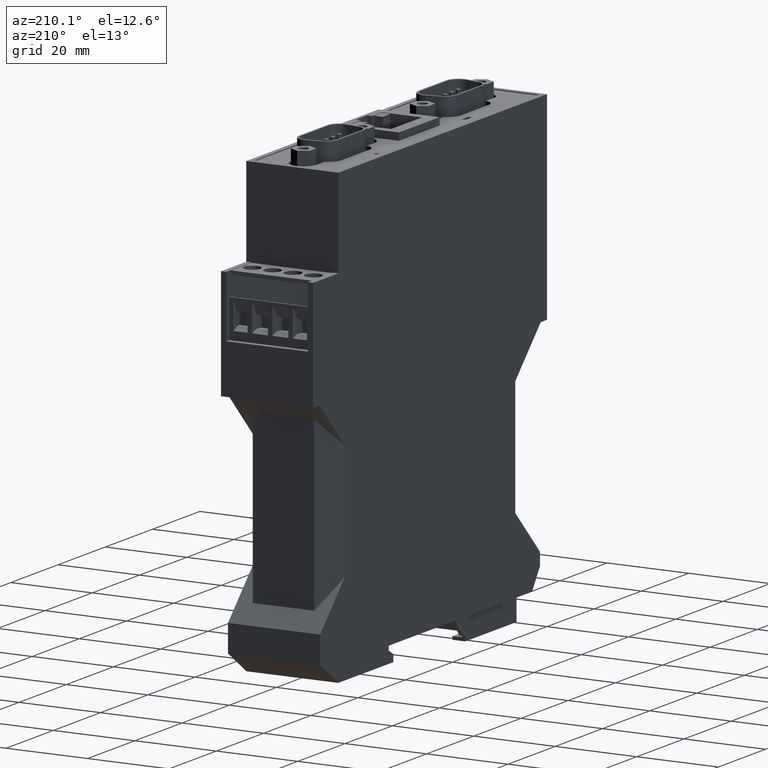
[diagram: clean part render]
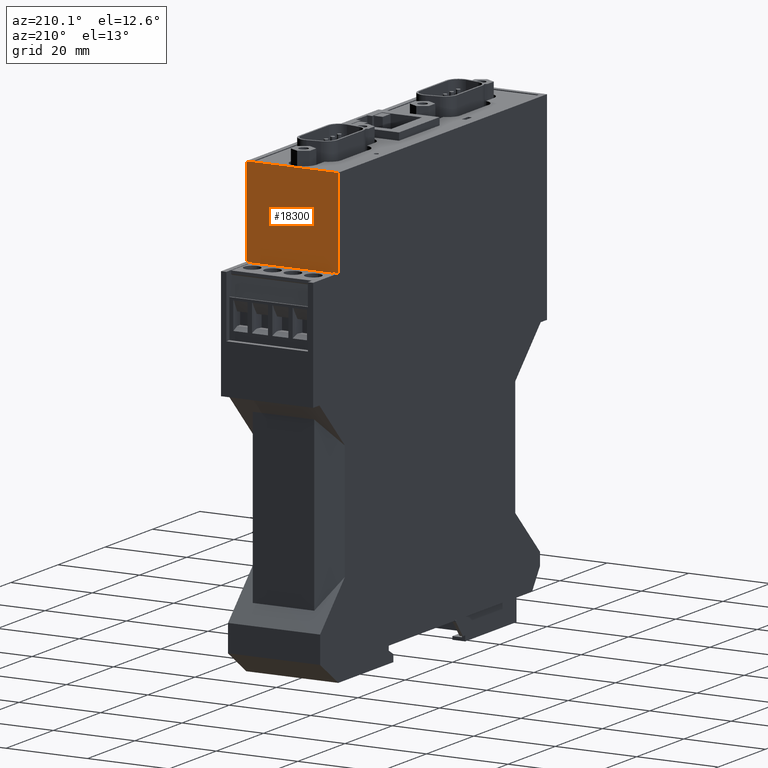
[diagram: same view with one face highlighted and labeled with its STEP entity id]
A machine part, auxiliary view. The second image highlights one B-rep face of the part: STEP entity #18300.
In plain terms, the highlighted planar face has unit normal (0, 1, 0).
Its self-contained STEP definition (entity closure, byte-faithful):
#1080=CARTESIAN_POINT('',(21.3000000000241,85.1000000000079,0.));
#1090=VERTEX_POINT('',#1080);
#1120=CARTESIAN_POINT('',(21.3000000000241,24.,0.));
#1130=DIRECTION('',(-2.17588503380295E-24,1.,0.));
#1140=VECTOR('',#1130,1.);
#1150=LINE('',#1120,#1140);
#1160=CARTESIAN_POINT('',(21.3000000000241,106.999999999943,0.));
#1170=VERTEX_POINT('',#1160);
#1180=EDGE_CURVE('',#1090,#1170,#1150,.T.);
#2590=CARTESIAN_POINT('',(21.2999999999832,106.999999999943,22.6));
#2600=VERTEX_POINT('',#2590);
#2630=CARTESIAN_POINT('',(21.3000000000036,24.,22.6));
#2640=DIRECTION('',(2.17588503380295E-24,-1.,-0.));
#2650=VECTOR('',#2640,1.);
#2660=LINE('',#2630,#2650);
#2670=CARTESIAN_POINT('',(21.2999999999832,85.1000000000079,22.6));
#2680=VERTEX_POINT('',#2670);
#2690=EDGE_CURVE('',#2600,#2680,#2660,.T.);
#17810=CARTESIAN_POINT('',(21.300000000011,99.421597788003,
7.24395756602027));
#17820=DIRECTION('',(1.,2.17588503380295E-24,1.81046150293795E-12));
#17830=DIRECTION('',(1.81046150293795E-12,0.,-1.));
#17840=AXIS2_PLACEMENT_3D('',#17810,#17820,#17830);
#17850=PLANE('',#17840);
#17860=ORIENTED_EDGE('',*,*,#1180,.T.);
#17870=CARTESIAN_POINT('',(21.3000000000241,85.1000000000079,0.));
#17880=DIRECTION('',(-1.81046150293795E-12,2.21416216699985E-24,1.));
#17890=VECTOR('',#17880,1.);
#17900=LINE('',#17870,#17890);
#17910=CARTESIAN_POINT('',(21.3000000000217,85.1000000000079,
1.30000000015381));
#17920=VERTEX_POINT('',#17910);
#17930=EDGE_CURVE('',#1090,#17920,#17900,.T.);
#17940=ORIENTED_EDGE('',*,*,#17930,.F.);
#17950=CARTESIAN_POINT('',(21.3000000000217,24.,1.30000000015381));
#17960=DIRECTION('',(2.17588503379894E-24,-1.,2.21419669665522E-24));
#17970=VECTOR('',#17960,1.);
#17980=LINE('',#17950,#17970);
#17990=CARTESIAN_POINT('',(21.3000000000217,85.0000000000079,
1.30000000015381));
#18000=VERTEX_POINT('',#17990);
#18010=EDGE_CURVE('',#17920,#18000,#17980,.T.);
#18020=ORIENTED_EDGE('',*,*,#18010,.F.);
#18030=CARTESIAN_POINT('',(21.3000000000241,85.0000000000079,0.));
#18040=DIRECTION('',(1.81046150293795E-12,0.,-1.));
#18050=VECTOR('',#18040,1.);
#18060=LINE('',#18030,#18050);
#18070=CARTESIAN_POINT('',(21.2999999999855,85.0000000000079,
21.3000000001629));
#18080=VERTEX_POINT('',#18070);
#18090=EDGE_CURVE('',#18080,#18000,#18060,.T.);
#18100=ORIENTED_EDGE('',*,*,#18090,.T.);
#18110=CARTESIAN_POINT('',(21.2999999999855,24.,21.3000000001629));
#18120=DIRECTION('',(-2.17588503379894E-24,1.,-2.21419669665522E-24));
#18130=VECTOR('',#18120,1.);
#18140=LINE('',#18110,#18130);
#18150=CARTESIAN_POINT('',(21.2999999999855,85.1000000000079,
21.3000000001629));
#18160=VERTEX_POINT('',#18150);
#18170=EDGE_CURVE('',#18080,#18160,#18140,.T.);
#18180=ORIENTED_EDGE('',*,*,#18170,.F.);
#18190=EDGE_CURVE('',#18160,#2680,#17900,.T.);
#18200=ORIENTED_EDGE('',*,*,#18190,.F.);
#18210=ORIENTED_EDGE('',*,*,#2690,.T.);
#18220=CARTESIAN_POINT('',(21.3000000000241,106.999999999943,0.));
#18230=DIRECTION('',(-1.81046150293795E-12,2.21416216699985E-24,1.));
#18240=VECTOR('',#18230,1.);
#18250=LINE('',#18220,#18240);
#18260=EDGE_CURVE('',#1170,#2600,#18250,.T.);
#18270=ORIENTED_EDGE('',*,*,#18260,.T.);
#18280=EDGE_LOOP('',(#18270,#18210,#18200,#18180,#18100,#18020,#17940,
#17860));
#18290=FACE_OUTER_BOUND('',#18280,.T.);
#18300=ADVANCED_FACE('',(#18290),#17850,.T.);